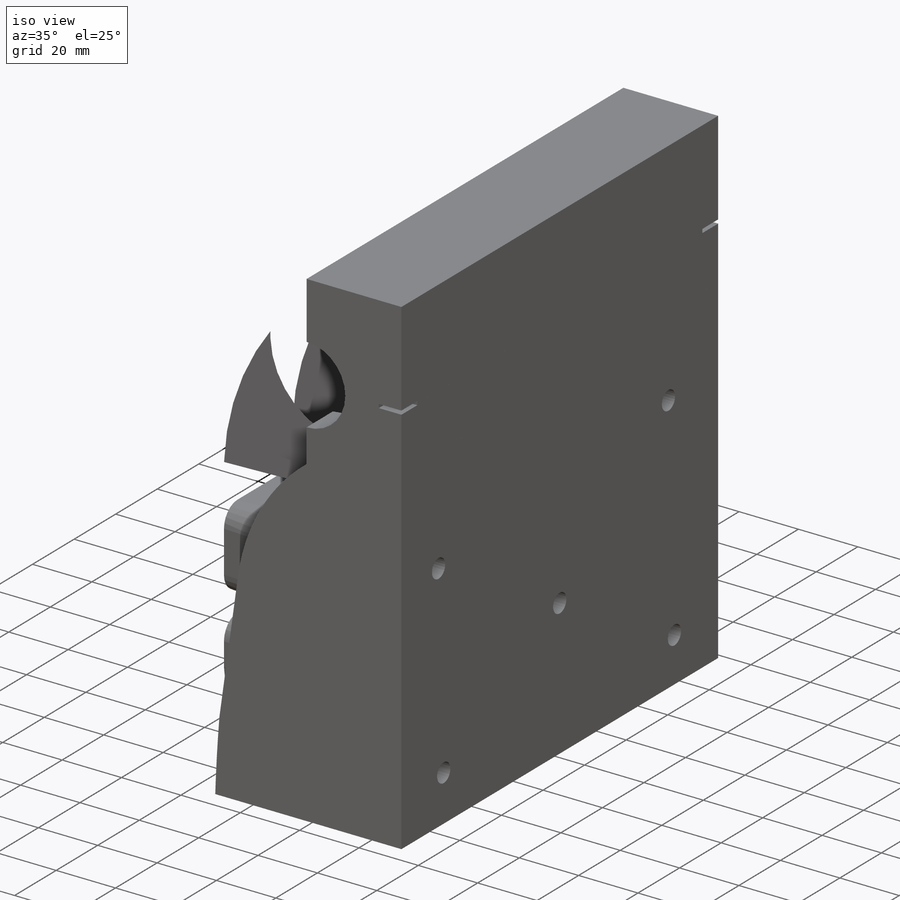
[diagram: iso view]
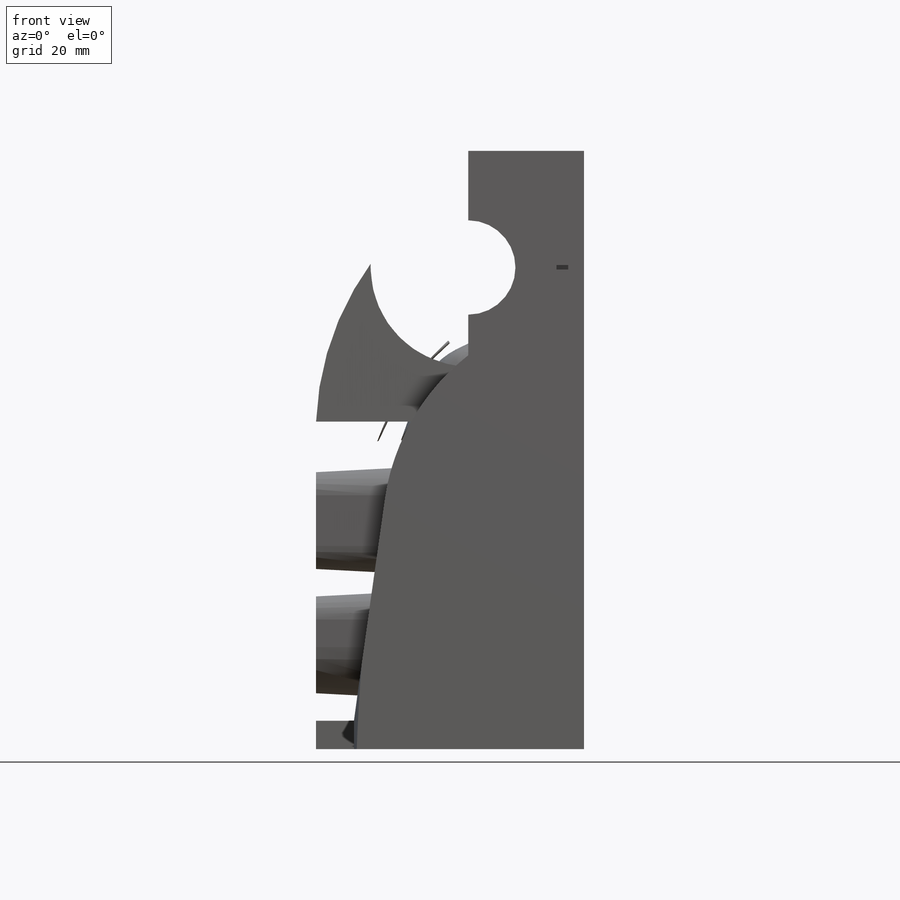
[diagram: front view]
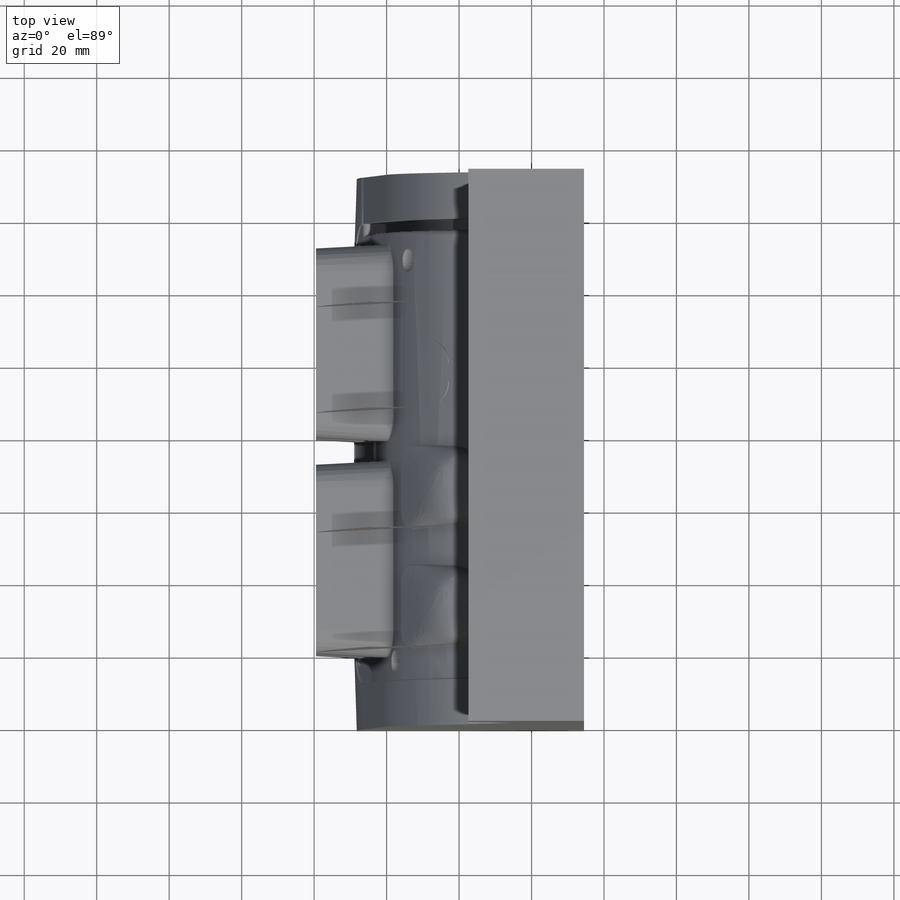
[diagram: top view]
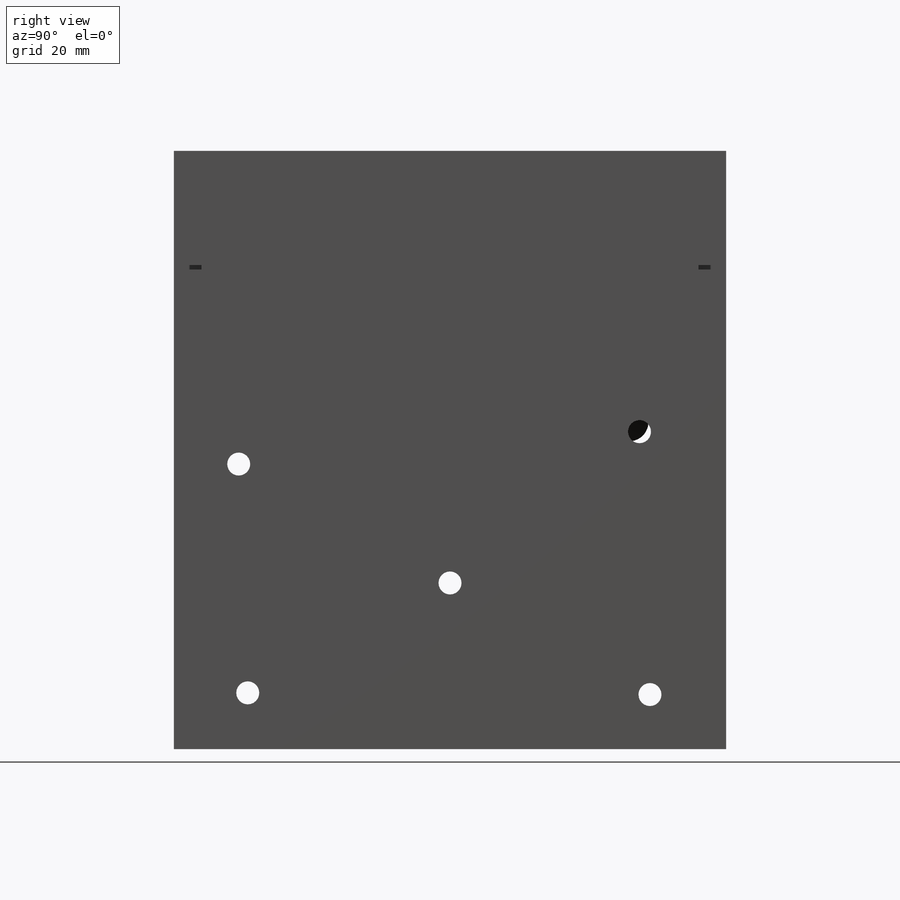
[diagram: right view]
SOLIDWORKS PART (.sldprt)
format: sldprt  version: not decoded by parser v0  size: 4,947,968 bytes
history: native  units: mm
features: sketch x29, extrude x14, cut_extrude x7, fillet x7, plane x3, pattern_linear x2, material x1, mirror x1 + 2 further entries (+16 scaffold rows collapsed)
feature tree (82):
  scaffold x16  (default folders/planes/origin — collapsed)
  material  "Material <not specified>"
  "Core Surface Bodies"
  "Parting Surface Bodies"
  sketch  "Sketch1"  dims[D3=41.91mm D1=11.43mm D2=146.05mm D4=63.5mm D7=82.0deg D5=79.6036mm D6=43.942mm]
  extrude  "Extrude1"  Depth=7.62mm
  pattern_linear  "LPattern1"  Count1=2 Count2=1 Spacing1=119.38mm Spacing2=50mm
  pattern_linear  "LPattern2"  Count1=2 Count2=1 Spacing1=59.69mm Spacing2=50mm
  sketch  "Sketch3"
  extrude  "Extrude2"  [1 undecoded]
  sketch  "Sketch4"  dims[D1=7.62mm]
  extrude  "Extrude3"  [1 undecoded]
  sketch  "Sketch5"  dims[D1=76.2mm D2=7.62mm]
  extrude  "Extrude4"  [1 undecoded]
  sketch  "Sketch6"  dims[D1=38.1mm D2=3.81mm D3=3.81mm]
  extrude  "Extrude5"  [1 undecoded]
  sketch  "Sketch7"  dims[D1=6.35mm]
  extrude  "Extrude6"  [1 undecoded]
  sketch  "Sketch8"
  cut_extrude  "Extrude7"  Depth=25.4mm
  sketch  "Sketch11"
  extrude  "Extrude9"  Depth=7.62mm
  sketch  "Sketch12"  dims[D1=0.0mm]
  cut_extrude  "Extrude10"  [1 undecoded]
  sketch  "Sketch14"
  cut_extrude  "Extrude11"  Depth=25.4mm
  sketch  "Sketch15"
  extrude  "Extrude12"  Depth=7.62mm
  plane  "Plane1"  Offset=25.4mm
  sketch  "Sketch16"  dims[D1=0.0mm]
  extrude  "Extrude13"  Depth=3.81mm
  sketch  "Sketch17"  dims[D1=22.225mm]
  cut_extrude  "Extrude14"  [1 undecoded]
  sketch  "Sketch18"  dims[D1=6.35mm D2=15.24mm]
  extrude  "Extrude15"  Depth=3.175mm
  plane  "Plane2"  Offset=6.35mm
  sketch  "Sketch20"  dims[D1=4.445mm D2=4.445mm]
  extrude  "Extrude16"  Depth=114.3mm
  sketch  "Sketch21"  dims[D1=4.445mm]
  extrude  "Extrude17"  Depth=7.62mm
  plane  "Plane3"  Offset=63.5mm
  mirror  "Mirror1"
  sketch  "Sketch22"  dims[D1=4.445mm]
  extrude  "Extrude18"  Depth=36.83mm
  fillet  "Fillet1"  Radius=15.875mm
  fillet  "Fillet2"  Radius=12.7mm
  fillet  "Fillet3"  Radius=6.35mm
  fillet  "Fillet4"  Radius=6.35mm
  fillet  "Fillet5"  Radius=1.27mm
  fillet  "Fillet7"  Radius=2.2225mm
  fillet  "Fillet6"  Radius=0.508mm
  sketch  "Sketch25"
  sketch  "Sketch26"
  extrude  "Extrude19"  Depth=50.8mm
  sketch  "Sketch32"  dims[c1.D1=152.4mm c1.D2=165.1mm c1.D3=152.4mm c2.D1=19.05mm c2.D2=63.5mm c2.D3=3.0deg]
  sketch  "Sketch34"
  sketch  "Sketch38"
  sketch  "Sketch40"
  sketch  "Sketch41"  dims[D1=6.35mm D2=6.35mm D3=6.35mm D4=6.35mm D5=6.35mm D6=6.35mm]
  sketch  "Sketch42"  dims[D1=6.35mm D2=6.35mm D3=6.35mm D4=6.35mm]
  sketch  "Sketch44"  dims[D1=0.0mm]
  sketch  "Sketch46"  dims[D1=26.035mm]
  cut_extrude  "Extrude20"  [1 undecoded]
  sketch  "Sketch47"  dims[D1=0.635mm D2=0.635mm D3=7.62mm]
  cut_extrude  "Extrude22"  Depth=7.62mm
  sketch  "Sketch48"  dims[D1=1.27mm D2=7.62mm]
  cut_extrude  "Extrude23"  Depth=7.62mm
decode coverage: 41 of 60 modeling features carry decoded parameters; 2 rows unclassified (native names shown)
note: 8 parameter values undecoded
summary: no parameter record found for 8 features
note: suppression state not decoded; provenance and decode notes live in map.json
